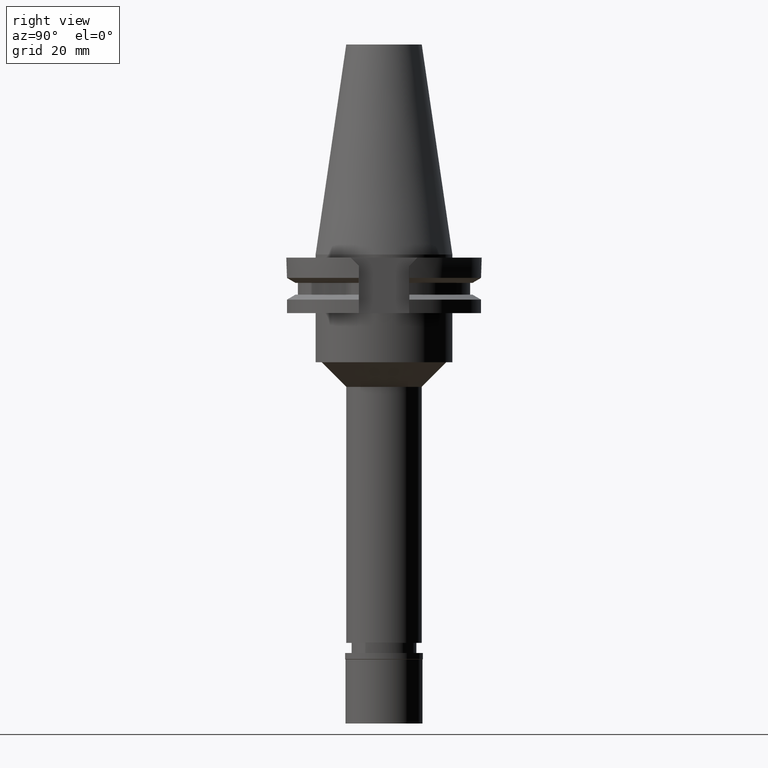
[diagram: clean part render]
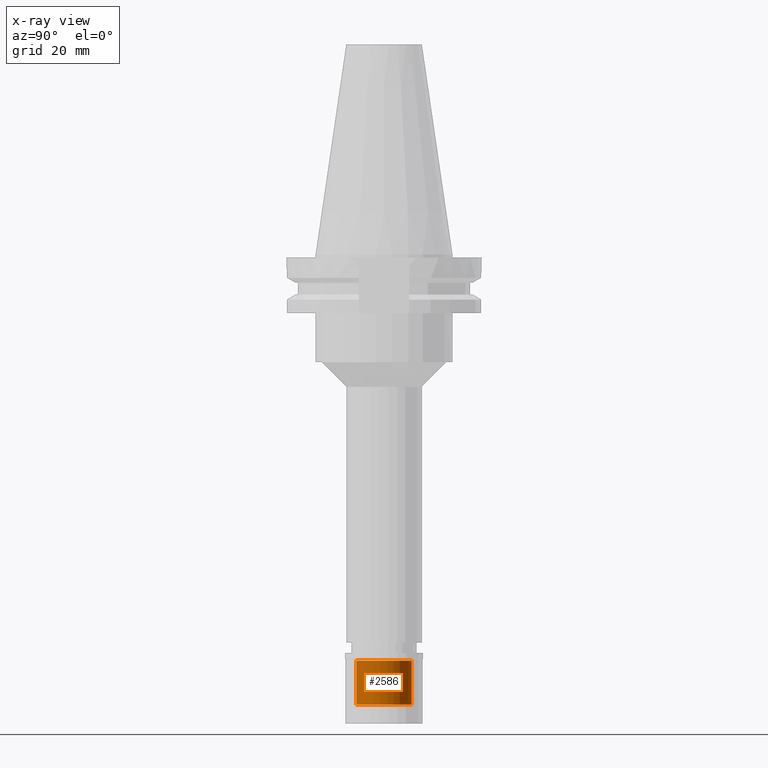
[diagram: x-ray — body ghosted, one internal face saturated and labeled with its STEP entity id]
A machine part, right view, then the same camera in x-ray: the body is ghosted and one INTERNAL B-rep face — a face not visible from any outside direction — is saturated and labeled: STEP entity #2586.
In plain terms, the highlighted cylindrical surface (edge-blend (fillet) strip) has radius 9 mm, axis along (0, 0, -1).
Its self-contained STEP definition (entity closure, byte-faithful):
#140 = ORIENTED_EDGE ( 'NONE', *, *, #3165, .T. ) ;
#218 = EDGE_CURVE ( 'NONE', #3230, #999, #644, .T. ) ;
#268 = CARTESIAN_POINT ( 'NONE',  ( 0.0000000000000000000, 0.0000000000000000000, -16.69999999999999929 ) ) ;
#400 = EDGE_LOOP ( 'NONE', ( #2807, #140, #419, #3163 ) ) ;
#402 = CARTESIAN_POINT ( 'NONE',  ( 0.0000000000000000000, -9.000000000000000000, -16.69999999999999929 ) ) ;
#419 = ORIENTED_EDGE ( 'NONE', *, *, #712, .T. ) ;
#537 = DIRECTION ( 'NONE',  ( 0.0000000000000000000, 0.0000000000000000000, -1.000000000000000000 ) ) ;
#562 = VECTOR ( 'NONE', #2783, 1000.000000000000000 ) ;
#572 = VERTEX_POINT ( 'NONE', #1999 ) ;
#644 = CIRCLE ( 'NONE', #2198, 9.000000000000000000 ) ;
#712 = EDGE_CURVE ( 'NONE', #572, #1132, #1232, .T. ) ;
#730 = DIRECTION ( 'NONE',  ( 0.0000000000000000000, -1.000000000000000000, 0.0000000000000000000 ) ) ;
#746 = CYLINDRICAL_SURFACE ( 'NONE', #3204, 9.000000000000000000 ) ;
#999 = VERTEX_POINT ( 'NONE', #402 ) ;
#1006 = DIRECTION ( 'NONE',  ( 0.0000000000000000000, 0.0000000000000000000, 1.000000000000000000 ) ) ;
#1014 = CARTESIAN_POINT ( 'NONE',  ( 0.0000000000000000000, 0.0000000000000000000, 0.0000000000000000000 ) ) ;
#1086 = DIRECTION ( 'NONE',  ( 0.0000000000000000000, 0.0000000000000000000, 1.000000000000000000 ) ) ;
#1132 = VERTEX_POINT ( 'NONE', #2881 ) ;
#1232 = CIRCLE ( 'NONE', #1876, 9.000000000000000000 ) ;
#1239 = LINE ( 'NONE', #2812, #562 ) ;
#1384 = EDGE_CURVE ( 'NONE', #3230, #1132, #1916, .T. ) ;
#1571 = CARTESIAN_POINT ( 'NONE',  ( 0.0000000000000000000, 0.0000000000000000000, -2.500000000000000000 ) ) ;
#1876 = AXIS2_PLACEMENT_3D ( 'NONE', #1571, #1006, #3064 ) ;
#1916 = LINE ( 'NONE', #2403, #3056 ) ;
#1999 = CARTESIAN_POINT ( 'NONE',  ( 0.0000000000000000000, -9.000000000000000000, -2.500000000000000000 ) ) ;
#2198 = AXIS2_PLACEMENT_3D ( 'NONE', #268, #537, #2320 ) ;
#2320 = DIRECTION ( 'NONE',  ( 0.0000000000000000000, 1.000000000000000000, 0.0000000000000000000 ) ) ;
#2403 = CARTESIAN_POINT ( 'NONE',  ( 0.0000000000000000000, 9.000000000000000000, -16.69999999999999929 ) ) ;
#2486 = CARTESIAN_POINT ( 'NONE',  ( 0.0000000000000000000, 9.000000000000000000, -16.69999999999999929 ) ) ;
#2511 = DIRECTION ( 'NONE',  ( 0.0000000000000000000, 0.0000000000000000000, -1.000000000000000000 ) ) ;
#2586 = ADVANCED_FACE ( 'NONE', ( #3037 ), #746, .F. ) ;
#2783 = DIRECTION ( 'NONE',  ( 0.0000000000000000000, 0.0000000000000000000, 1.000000000000000000 ) ) ;
#2807 = ORIENTED_EDGE ( 'NONE', *, *, #218, .T. ) ;
#2812 = CARTESIAN_POINT ( 'NONE',  ( 0.0000000000000000000, -9.000000000000000000, -16.69999999999999929 ) ) ;
#2881 = CARTESIAN_POINT ( 'NONE',  ( 0.0000000000000000000, 9.000000000000000000, -2.500000000000000000 ) ) ;
#3037 = FACE_OUTER_BOUND ( 'NONE', #400, .T. ) ;
#3056 = VECTOR ( 'NONE', #1086, 1000.000000000000000 ) ;
#3064 = DIRECTION ( 'NONE',  ( 0.0000000000000000000, -1.000000000000000000, 0.0000000000000000000 ) ) ;
#3163 = ORIENTED_EDGE ( 'NONE', *, *, #1384, .F. ) ;
#3165 = EDGE_CURVE ( 'NONE', #999, #572, #1239, .T. ) ;
#3204 = AXIS2_PLACEMENT_3D ( 'NONE', #1014, #2511, #730 ) ;
#3230 = VERTEX_POINT ( 'NONE', #2486 ) ;